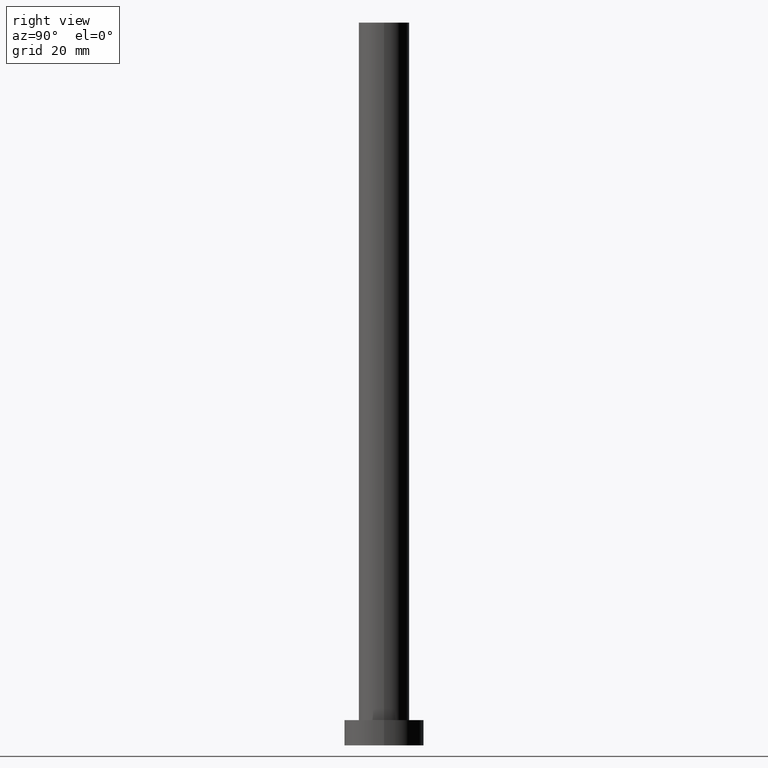
[diagram: clean part render]
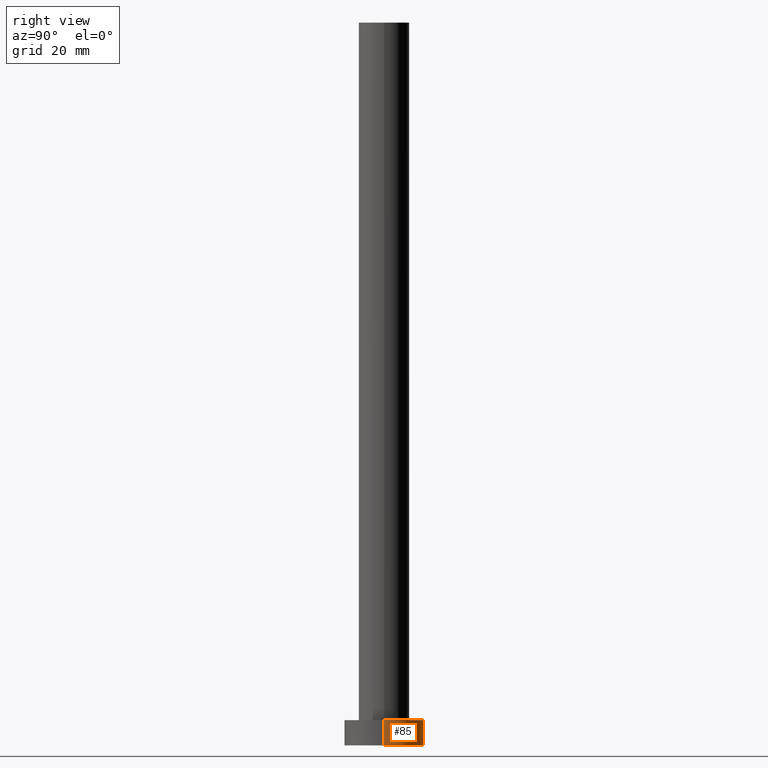
[diagram: same view with one face highlighted and labeled with its STEP entity id]
A machine part, right view. The second image highlights one B-rep face of the part: STEP entity #85.
In plain terms, the highlighted cylindrical surface (partial cylindrical patch) has radius 11 mm, axis along (-0, -0, -1).
Its self-contained STEP definition (entity closure, byte-faithful):
#12 = ORIENTED_EDGE ( 'NONE', *, *, #254, .F. ) ;
#21 = EDGE_CURVE ( 'NONE', #252, #32, #111, .T. ) ;
#26 = FACE_OUTER_BOUND ( 'NONE', #248, .T. ) ;
#32 = VERTEX_POINT ( 'NONE', #166 ) ;
#41 = EDGE_CURVE ( 'NONE', #32, #53, #43, .T. ) ;
#43 = CIRCLE ( 'NONE', #59, 11.00000000000000000 ) ;
#44 = DIRECTION ( 'NONE',  ( 1.000000000000000000, 0.000000000000000000, 0.000000000000000000 ) ) ;
#46 = CARTESIAN_POINT ( 'NONE',  ( -11.00000000000000000, 0.000000000000000000, 7.000000000000000000 ) ) ;
#53 = VERTEX_POINT ( 'NONE', #122 ) ;
#59 = AXIS2_PLACEMENT_3D ( 'NONE', #169, #181, #44 ) ;
#70 = LINE ( 'NONE', #86, #100 ) ;
#81 = DIRECTION ( 'NONE',  ( -1.000000000000000000, 0.000000000000000000, 0.000000000000000000 ) ) ;
#84 = DIRECTION ( 'NONE',  ( -0.000000000000000000, -0.000000000000000000, -1.000000000000000000 ) ) ;
#85 = ADVANCED_FACE ( 'NONE', ( #26 ), #200, .T. ) ;
#86 = CARTESIAN_POINT ( 'NONE',  ( -11.00000000000000000, 0.000000000000000000, 7.000000000000000000 ) ) ;
#87 = ORIENTED_EDGE ( 'NONE', *, *, #163, .F. ) ;
#90 = DIRECTION ( 'NONE',  ( -0.000000000000000000, -0.000000000000000000, -1.000000000000000000 ) ) ;
#97 = VECTOR ( 'NONE', #90, 1000.000000000000000 ) ;
#100 = VECTOR ( 'NONE', #232, 1000.000000000000000 ) ;
#111 = LINE ( 'NONE', #193, #97 ) ;
#122 = CARTESIAN_POINT ( 'NONE',  ( -11.00000000000000000, 0.000000000000000000, 0.000000000000000000 ) ) ;
#125 = CARTESIAN_POINT ( 'NONE',  ( 0.000000000000000000, 0.000000000000000000, 7.000000000000000000 ) ) ;
#144 = CIRCLE ( 'NONE', #212, 11.00000000000000000 ) ;
#147 = CARTESIAN_POINT ( 'NONE',  ( 11.00000000000000000, 1.347111479062088405E-15, 7.000000000000000000 ) ) ;
#163 = EDGE_CURVE ( 'NONE', #252, #206, #144, .T. ) ;
#166 = CARTESIAN_POINT ( 'NONE',  ( 11.00000000000000000, 1.347111479062088405E-15, 0.000000000000000000 ) ) ;
#169 = CARTESIAN_POINT ( 'NONE',  ( 0.000000000000000000, 0.000000000000000000, 0.000000000000000000 ) ) ;
#181 = DIRECTION ( 'NONE',  ( 0.000000000000000000, 0.000000000000000000, 1.000000000000000000 ) ) ;
#184 = DIRECTION ( 'NONE',  ( 1.000000000000000000, 0.000000000000000000, 0.000000000000000000 ) ) ;
#193 = CARTESIAN_POINT ( 'NONE',  ( 11.00000000000000000, 1.347111479062088405E-15, 7.000000000000000000 ) ) ;
#200 = CYLINDRICAL_SURFACE ( 'NONE', #241, 11.00000000000000000 ) ;
#204 = DIRECTION ( 'NONE',  ( 0.000000000000000000, 0.000000000000000000, 1.000000000000000000 ) ) ;
#206 = VERTEX_POINT ( 'NONE', #46 ) ;
#212 = AXIS2_PLACEMENT_3D ( 'NONE', #125, #204, #184 ) ;
#231 = ORIENTED_EDGE ( 'NONE', *, *, #21, .T. ) ;
#232 = DIRECTION ( 'NONE',  ( -0.000000000000000000, -0.000000000000000000, -1.000000000000000000 ) ) ;
#241 = AXIS2_PLACEMENT_3D ( 'NONE', #244, #84, #81 ) ;
#244 = CARTESIAN_POINT ( 'NONE',  ( 0.000000000000000000, 0.000000000000000000, 7.000000000000000000 ) ) ;
#248 = EDGE_LOOP ( 'NONE', ( #87, #231, #249, #12 ) ) ;
#249 = ORIENTED_EDGE ( 'NONE', *, *, #41, .T. ) ;
#252 = VERTEX_POINT ( 'NONE', #147 ) ;
#254 = EDGE_CURVE ( 'NONE', #206, #53, #70, .T. ) ;